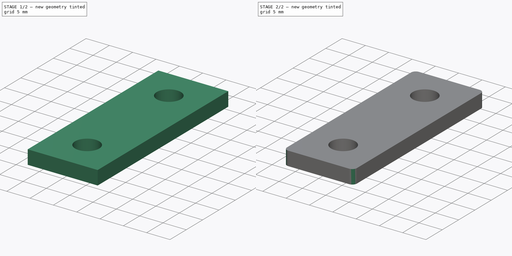
[diagram: build sequence overview — one tinted view per stage of 2, left to right]
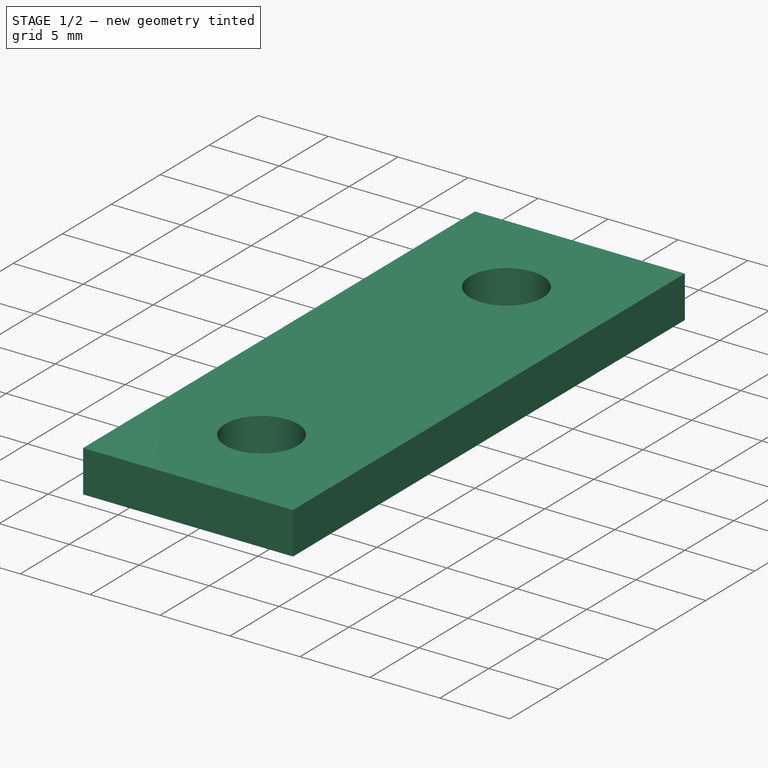
[diagram: stage 1 of 2 — iso view after this stage's code; geometry added in this stage tinted green]
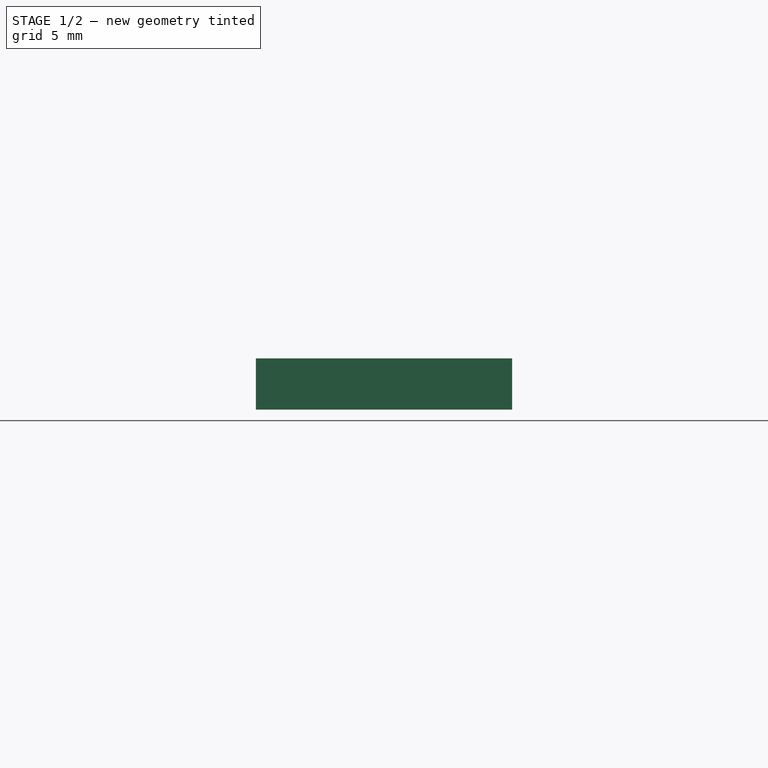
[diagram: stage 1 of 2 — front view after this stage's code; geometry added in this stage tinted green]
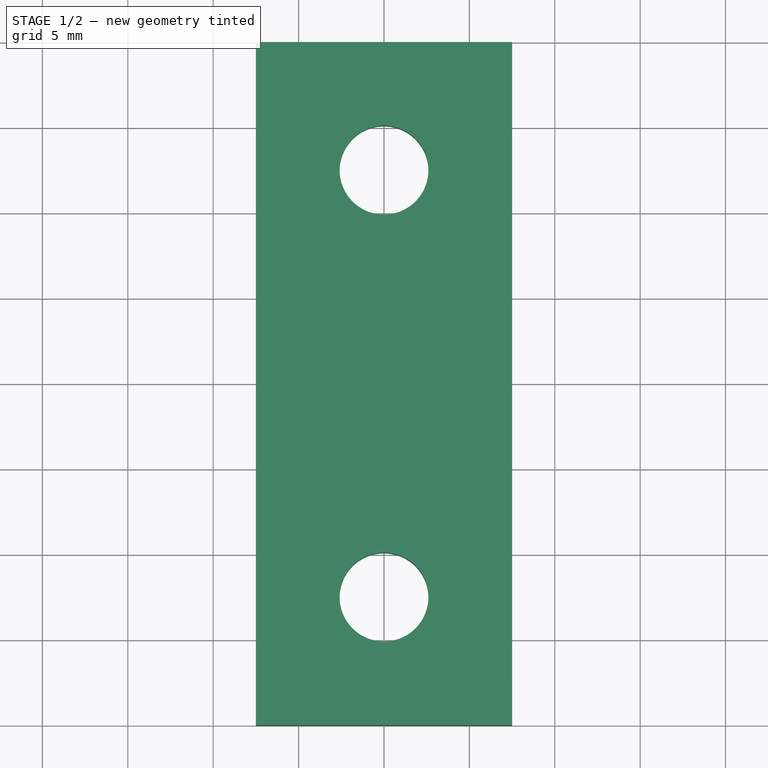
[diagram: stage 1 of 2 — top view after this stage's code; geometry added in this stage tinted green]
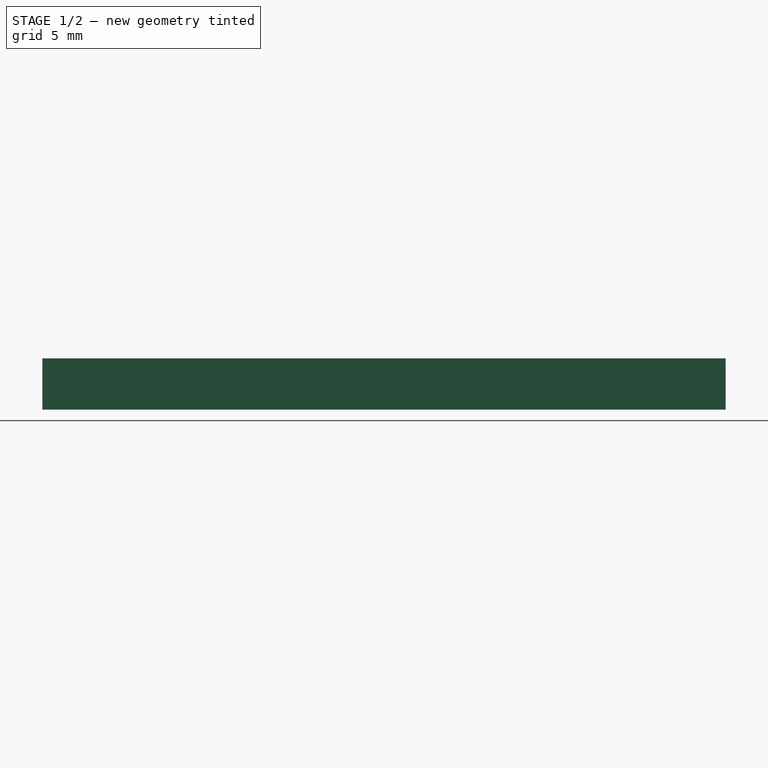
[diagram: stage 1 of 2 — right view after this stage's code; geometry added in this stage tinted green]
FCSTD DOCUMENT  (FreeCAD 0.14R3310 (Git))
Label: 27. SUPLEMENTO VISAGRA
License: CC-BY 3.0
LicenseURL: http://creativecommons.org/licenses/by/3.0/
objects: Sketcher::SketchObject×1, PartDesign::Pad×1, PartDesign::Fillet×1
note: 4 computed .brp shape members not serialized (recipe doc carries the construction recipe); baked Part::Feature solids carry a one-line shape summary decoded from their .brp

FEATURE [Sketcher::SketchObject] Sketch
  sketch-geometry (6):
    g0: LineSegment StartX=-7.5 StartY=20 StartZ=0 EndX=7.5 EndY=20 EndZ=0
    g1: LineSegment StartX=7.5 StartY=20 StartZ=0 EndX=7.5 EndY=-20 EndZ=0
    g2: LineSegment StartX=7.5 StartY=-20 StartZ=0 EndX=-7.5 EndY=-20 EndZ=0
    g3: LineSegment StartX=-7.5 StartY=-20 StartZ=0 EndX=-7.5 EndY=20 EndZ=0
    g4: Circle CenterX=0 CenterY=12.5 CenterZ=0 NormalX=0 NormalY=0 NormalZ=1 Radius=2.6
    g5: Circle CenterX=0 CenterY=-12.5 CenterZ=0 NormalX=0 NormalY=0 NormalZ=1 Radius=2.6
  constraints (17):
    c: Coincident(g0,g1)
    c: Coincident(g1,g2)
    c: Coincident(g2,g3)
    c: Coincident(g3,g0)
    c: Horizontal(g0)
    c: Horizontal(g2)
    c: Vertical(g1)
    c: Vertical(g3)
    c: Symmetric(g1,g0,g-1)
    c: Distance(g0) = 15
    c: Distance(g1) = 40
    c: PointOnObject(g4,g-2)
    c: PointOnObject(g5,g-2)
    c: Equal(g4,g5)
    c: Symmetric(g4,g5,g-1)
    c: Distance(g4,g5) = 25
    c: Radius(g4) = 2.6
FEATURE [PartDesign::Pad] Pad
  Length = 3
  Length2 = 100
  Sketch = -> Sketch
  Type = 0
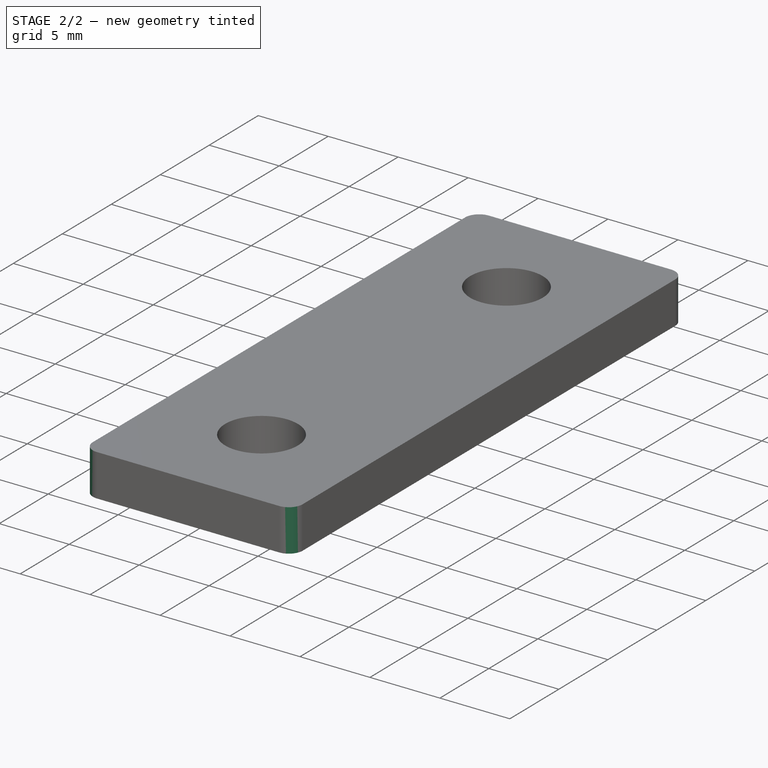
[diagram: stage 2 of 2 — iso view after this stage's code; geometry added in this stage tinted green]
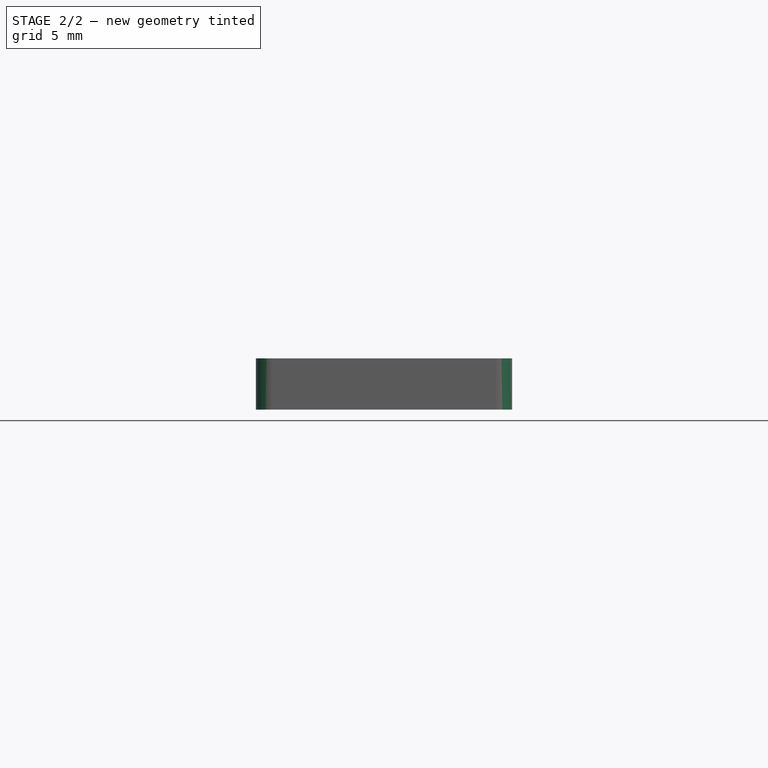
[diagram: stage 2 of 2 — front view after this stage's code; geometry added in this stage tinted green]
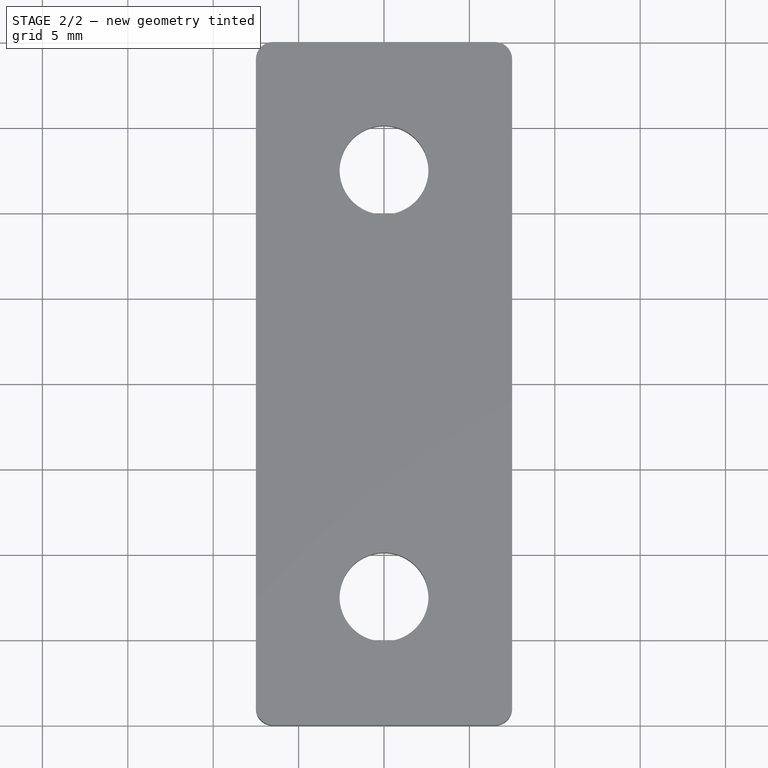
[diagram: stage 2 of 2 — top view after this stage's code; geometry added in this stage tinted green]
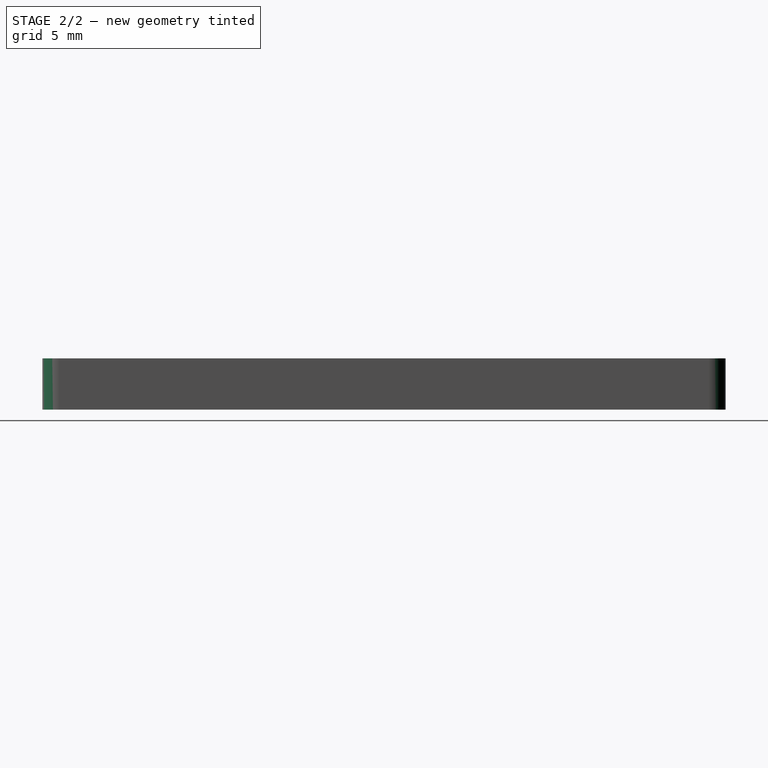
[diagram: stage 2 of 2 — right view after this stage's code; geometry added in this stage tinted green]
FEATURE [PartDesign::Fillet] Fillet
  Base = -> Pad [Edge2,Edge1,Edge5,Edge8]
  Radius = 1
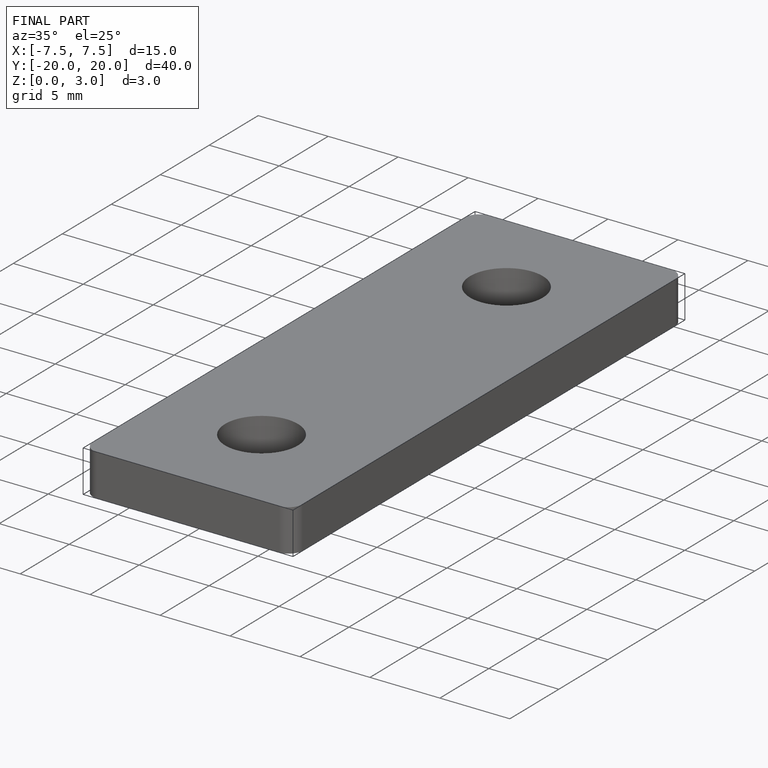
[diagram: finished part — iso view with bounding-box wireframe]
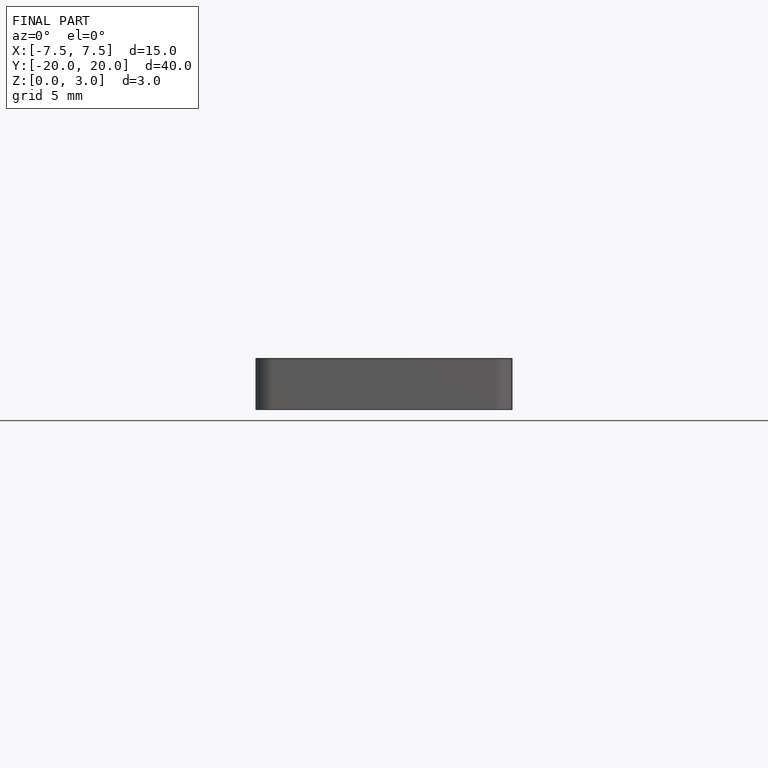
[diagram: finished part — front view with bounding-box wireframe]
